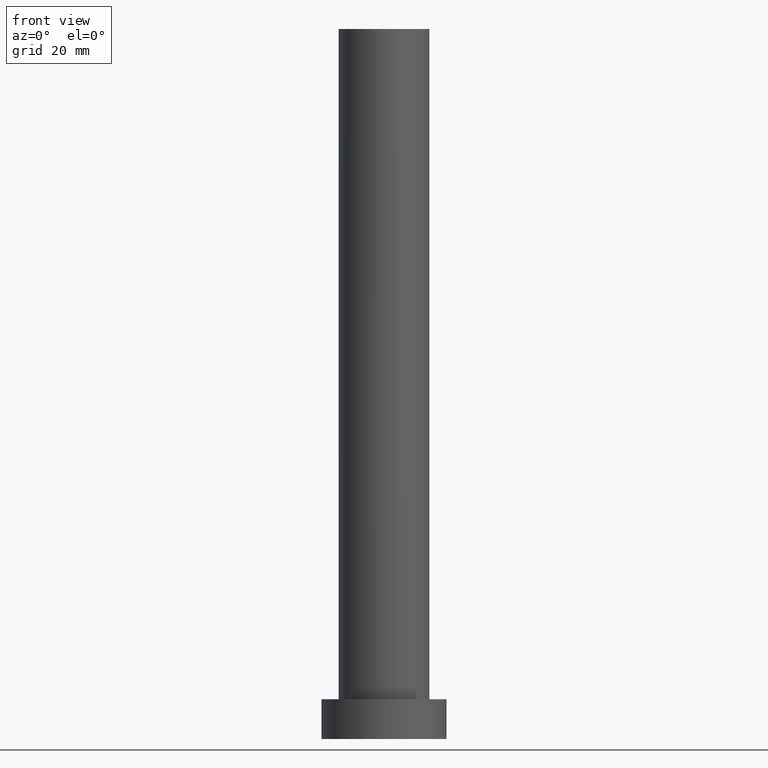
[diagram: clean part render]
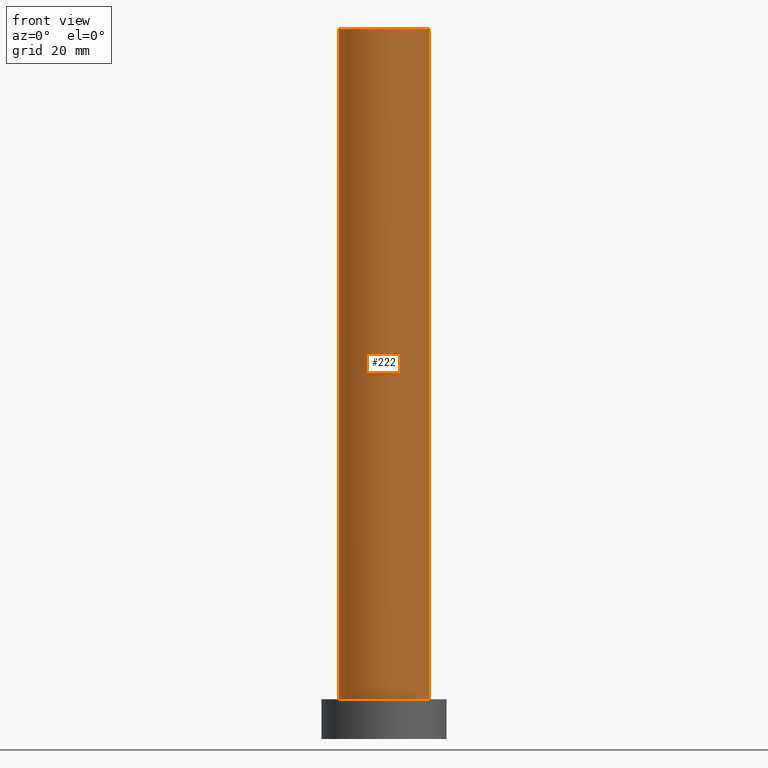
[diagram: same view with one face highlighted and labeled with its STEP entity id]
A machine part, front view. The second image highlights one B-rep face of the part: STEP entity #222.
In plain terms, the highlighted cylindrical surface (partial cylindrical patch) has radius 8 mm, axis along (-0, -0, -1).
Its self-contained STEP definition (entity closure, byte-faithful):
#6 = DIRECTION ( 'NONE',  ( 1.000000000000000000, 0.000000000000000000, 0.000000000000000000 ) ) ;
#8 = EDGE_CURVE ( 'NONE', #167, #132, #249, .T. ) ;
#9 = DIRECTION ( 'NONE',  ( -0.000000000000000000, -0.000000000000000000, -1.000000000000000000 ) ) ;
#19 = CARTESIAN_POINT ( 'NONE',  ( -8.000000000000000000, 0.000000000000000000, 125.0000000000000000 ) ) ;
#23 = ORIENTED_EDGE ( 'NONE', *, *, #246, .F. ) ;
#29 = EDGE_LOOP ( 'NONE', ( #151, #23, #253, #189 ) ) ;
#39 = DIRECTION ( 'NONE',  ( 0.000000000000000000, 0.000000000000000000, 1.000000000000000000 ) ) ;
#55 = VERTEX_POINT ( 'NONE', #177 ) ;
#61 = CARTESIAN_POINT ( 'NONE',  ( 8.000000000000000000, 9.797174393178825657E-16, 125.0000000000000000 ) ) ;
#65 = AXIS2_PLACEMENT_3D ( 'NONE', #108, #109, #6 ) ;
#74 = DIRECTION ( 'NONE',  ( 1.000000000000000000, 0.000000000000000000, 0.000000000000000000 ) ) ;
#75 = DIRECTION ( 'NONE',  ( -0.000000000000000000, -0.000000000000000000, -1.000000000000000000 ) ) ;
#97 = EDGE_CURVE ( 'NONE', #143, #55, #162, .T. ) ;
#102 = VECTOR ( 'NONE', #75, 1000.000000000000000 ) ;
#106 = CIRCLE ( 'NONE', #126, 8.000000000000000000 ) ;
#108 = CARTESIAN_POINT ( 'NONE',  ( 0.000000000000000000, 0.000000000000000000, 7.000000000000000000 ) ) ;
#109 = DIRECTION ( 'NONE',  ( 0.000000000000000000, 0.000000000000000000, 1.000000000000000000 ) ) ;
#112 = CARTESIAN_POINT ( 'NONE',  ( 0.000000000000000000, 0.000000000000000000, 125.0000000000000000 ) ) ;
#126 = AXIS2_PLACEMENT_3D ( 'NONE', #236, #39, #74 ) ;
#132 = VERTEX_POINT ( 'NONE', #224 ) ;
#137 = DIRECTION ( 'NONE',  ( -0.000000000000000000, -0.000000000000000000, -1.000000000000000000 ) ) ;
#140 = AXIS2_PLACEMENT_3D ( 'NONE', #112, #137, #205 ) ;
#142 = VECTOR ( 'NONE', #9, 1000.000000000000000 ) ;
#143 = VERTEX_POINT ( 'NONE', #182 ) ;
#151 = ORIENTED_EDGE ( 'NONE', *, *, #8, .F. ) ;
#160 = CYLINDRICAL_SURFACE ( 'NONE', #140, 8.000000000000000000 ) ;
#162 = LINE ( 'NONE', #19, #102 ) ;
#167 = VERTEX_POINT ( 'NONE', #218 ) ;
#175 = CIRCLE ( 'NONE', #65, 8.000000000000000000 ) ;
#177 = CARTESIAN_POINT ( 'NONE',  ( -8.000000000000000000, 0.000000000000000000, 7.000000000000000000 ) ) ;
#182 = CARTESIAN_POINT ( 'NONE',  ( -8.000000000000000000, 0.000000000000000000, 125.0000000000000000 ) ) ;
#189 = ORIENTED_EDGE ( 'NONE', *, *, #212, .T. ) ;
#205 = DIRECTION ( 'NONE',  ( -1.000000000000000000, 0.000000000000000000, 0.000000000000000000 ) ) ;
#212 = EDGE_CURVE ( 'NONE', #55, #132, #175, .T. ) ;
#218 = CARTESIAN_POINT ( 'NONE',  ( 8.000000000000000000, 9.797174393178825657E-16, 125.0000000000000000 ) ) ;
#222 = ADVANCED_FACE ( 'NONE', ( #240 ), #160, .T. ) ;
#224 = CARTESIAN_POINT ( 'NONE',  ( 8.000000000000000000, 9.797174393178825657E-16, 7.000000000000000000 ) ) ;
#236 = CARTESIAN_POINT ( 'NONE',  ( 0.000000000000000000, 0.000000000000000000, 125.0000000000000000 ) ) ;
#240 = FACE_OUTER_BOUND ( 'NONE', #29, .T. ) ;
#246 = EDGE_CURVE ( 'NONE', #143, #167, #106, .T. ) ;
#249 = LINE ( 'NONE', #61, #142 ) ;
#253 = ORIENTED_EDGE ( 'NONE', *, *, #97, .T. ) ;